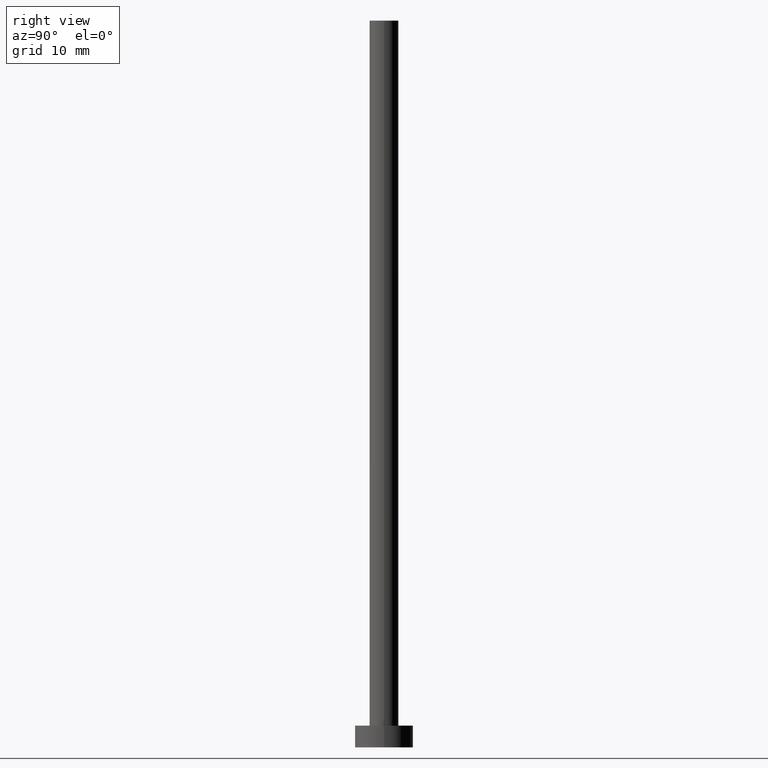
[diagram: clean part render]
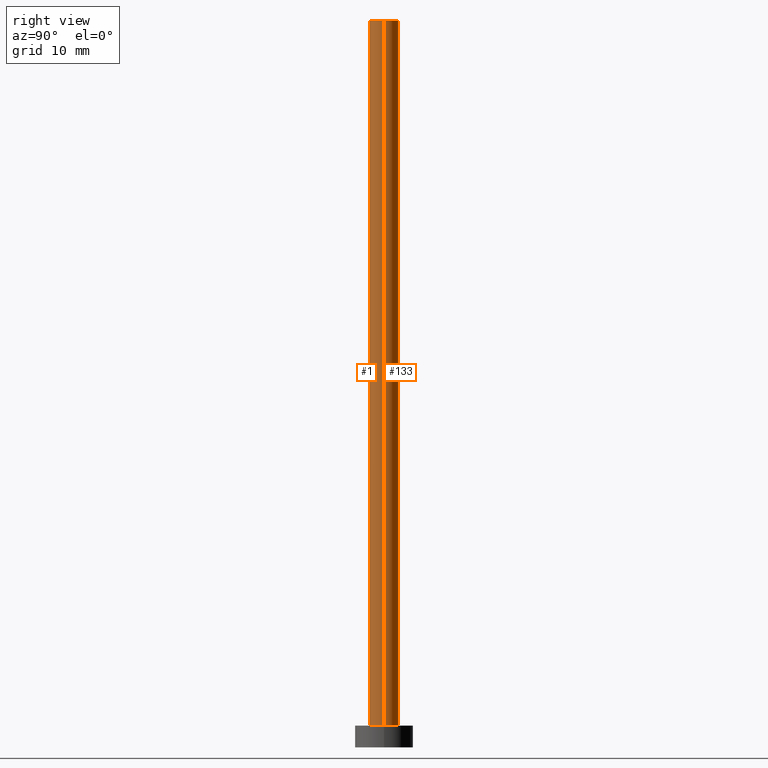
[diagram: same view with one multi-face feature highlighted, each face labeled with its STEP entity id]
A machine part, right view. The highlighted faces form ONE feature: a constant-radius fillet chain: 2 tangent blend faces with common blend radius 2 mm. The faces share edges in the B-rep.
Their STEP definitions:
[1] entity #1 (Cylinder):
#1 = ADVANCED_FACE ( 'NONE', ( #75 ), #153, .T. ) ;
#3 = CIRCLE ( 'NONE', #9, 2.000000000000000000 ) ;
#7 = VECTOR ( 'NONE', #138, 1000.000000000000000 ) ;
#9 = AXIS2_PLACEMENT_3D ( 'NONE', #111, #126, #186 ) ;
#10 = CARTESIAN_POINT ( 'NONE',  ( 2.000000000000000000, 2.449293598294705921E-16, 100.0000000000000000 ) ) ;
#13 = EDGE_CURVE ( 'NONE', #149, #152, #127, .T. ) ;
#26 = AXIS2_PLACEMENT_3D ( 'NONE', #155, #254, #215 ) ;
#27 = ORIENTED_EDGE ( 'NONE', *, *, #143, .F. ) ;
#30 = ORIENTED_EDGE ( 'NONE', *, *, #13, .T. ) ;
#61 = EDGE_CURVE ( 'NONE', #152, #173, #3, .T. ) ;
#75 = FACE_OUTER_BOUND ( 'NONE', #112, .T. ) ;
#86 = VECTOR ( 'NONE', #210, 1000.000000000000000 ) ;
#92 = DIRECTION ( 'NONE',  ( -1.000000000000000000, 0.000000000000000000, 0.000000000000000000 ) ) ;
#97 = EDGE_CURVE ( 'NONE', #206, #173, #227, .T. ) ;
#111 = CARTESIAN_POINT ( 'NONE',  ( 0.000000000000000000, 0.000000000000000000, 3.000000000000000000 ) ) ;
#112 = EDGE_LOOP ( 'NONE', ( #124, #27, #30, #168 ) ) ;
#120 = CARTESIAN_POINT ( 'NONE',  ( 2.000000000000000000, 2.449293598294705921E-16, 3.000000000000000000 ) ) ;
#124 = ORIENTED_EDGE ( 'NONE', *, *, #97, .F. ) ;
#126 = DIRECTION ( 'NONE',  ( 0.000000000000000000, 0.000000000000000000, 1.000000000000000000 ) ) ;
#127 = LINE ( 'NONE', #131, #86 ) ;
#129 = CARTESIAN_POINT ( 'NONE',  ( 0.000000000000000000, 0.000000000000000000, 100.0000000000000000 ) ) ;
#131 = CARTESIAN_POINT ( 'NONE',  ( -2.000000000000000000, 0.000000000000000000, 100.0000000000000000 ) ) ;
#138 = DIRECTION ( 'NONE',  ( -0.000000000000000000, -0.000000000000000000, -1.000000000000000000 ) ) ;
#143 = EDGE_CURVE ( 'NONE', #149, #206, #239, .T. ) ;
#149 = VERTEX_POINT ( 'NONE', #175 ) ;
#152 = VERTEX_POINT ( 'NONE', #251 ) ;
#153 = CYLINDRICAL_SURFACE ( 'NONE', #195, 2.000000000000000000 ) ;
#155 = CARTESIAN_POINT ( 'NONE',  ( 0.000000000000000000, 0.000000000000000000, 100.0000000000000000 ) ) ;
#168 = ORIENTED_EDGE ( 'NONE', *, *, #61, .T. ) ;
#173 = VERTEX_POINT ( 'NONE', #120 ) ;
#175 = CARTESIAN_POINT ( 'NONE',  ( -2.000000000000000000, 0.000000000000000000, 100.0000000000000000 ) ) ;
#186 = DIRECTION ( 'NONE',  ( 1.000000000000000000, 0.000000000000000000, 0.000000000000000000 ) ) ;
#191 = CARTESIAN_POINT ( 'NONE',  ( 2.000000000000000000, 2.449293598294705921E-16, 100.0000000000000000 ) ) ;
#195 = AXIS2_PLACEMENT_3D ( 'NONE', #129, #232, #92 ) ;
#206 = VERTEX_POINT ( 'NONE', #191 ) ;
#210 = DIRECTION ( 'NONE',  ( -0.000000000000000000, -0.000000000000000000, -1.000000000000000000 ) ) ;
#215 = DIRECTION ( 'NONE',  ( 1.000000000000000000, 0.000000000000000000, 0.000000000000000000 ) ) ;
#227 = LINE ( 'NONE', #10, #7 ) ;
#232 = DIRECTION ( 'NONE',  ( -0.000000000000000000, -0.000000000000000000, -1.000000000000000000 ) ) ;
#239 = CIRCLE ( 'NONE', #26, 2.000000000000000000 ) ;
#251 = CARTESIAN_POINT ( 'NONE',  ( -2.000000000000000000, 0.000000000000000000, 3.000000000000000000 ) ) ;
#254 = DIRECTION ( 'NONE',  ( 0.000000000000000000, 0.000000000000000000, 1.000000000000000000 ) ) ;
[2] entity #133 (Cylinder):
#2 = FACE_OUTER_BOUND ( 'NONE', #51, .T. ) ;
#6 = EDGE_CURVE ( 'NONE', #206, #149, #164, .T. ) ;
#7 = VECTOR ( 'NONE', #138, 1000.000000000000000 ) ;
#10 = CARTESIAN_POINT ( 'NONE',  ( 2.000000000000000000, 2.449293598294705921E-16, 100.0000000000000000 ) ) ;
#11 = EDGE_CURVE ( 'NONE', #173, #152, #39, .T. ) ;
#13 = EDGE_CURVE ( 'NONE', #149, #152, #127, .T. ) ;
#37 = DIRECTION ( 'NONE',  ( -0.000000000000000000, -0.000000000000000000, -1.000000000000000000 ) ) ;
#39 = CIRCLE ( 'NONE', #205, 2.000000000000000000 ) ;
#51 = EDGE_LOOP ( 'NONE', ( #71, #128, #203, #242 ) ) ;
#52 = CARTESIAN_POINT ( 'NONE',  ( 0.000000000000000000, 0.000000000000000000, 3.000000000000000000 ) ) ;
#69 = CARTESIAN_POINT ( 'NONE',  ( 0.000000000000000000, 0.000000000000000000, 100.0000000000000000 ) ) ;
#71 = ORIENTED_EDGE ( 'NONE', *, *, #6, .F. ) ;
#73 = AXIS2_PLACEMENT_3D ( 'NONE', #238, #37, #132 ) ;
#74 = DIRECTION ( 'NONE',  ( 0.000000000000000000, 0.000000000000000000, 1.000000000000000000 ) ) ;
#86 = VECTOR ( 'NONE', #210, 1000.000000000000000 ) ;
#97 = EDGE_CURVE ( 'NONE', #206, #173, #227, .T. ) ;
#120 = CARTESIAN_POINT ( 'NONE',  ( 2.000000000000000000, 2.449293598294705921E-16, 3.000000000000000000 ) ) ;
#127 = LINE ( 'NONE', #131, #86 ) ;
#128 = ORIENTED_EDGE ( 'NONE', *, *, #97, .T. ) ;
#131 = CARTESIAN_POINT ( 'NONE',  ( -2.000000000000000000, 0.000000000000000000, 100.0000000000000000 ) ) ;
#132 = DIRECTION ( 'NONE',  ( -1.000000000000000000, 0.000000000000000000, 0.000000000000000000 ) ) ;
#133 = ADVANCED_FACE ( 'NONE', ( #2 ), #176, .T. ) ;
#138 = DIRECTION ( 'NONE',  ( -0.000000000000000000, -0.000000000000000000, -1.000000000000000000 ) ) ;
#149 = VERTEX_POINT ( 'NONE', #175 ) ;
#152 = VERTEX_POINT ( 'NONE', #251 ) ;
#160 = AXIS2_PLACEMENT_3D ( 'NONE', #69, #74, #172 ) ;
#164 = CIRCLE ( 'NONE', #160, 2.000000000000000000 ) ;
#172 = DIRECTION ( 'NONE',  ( 1.000000000000000000, 0.000000000000000000, 0.000000000000000000 ) ) ;
#173 = VERTEX_POINT ( 'NONE', #120 ) ;
#175 = CARTESIAN_POINT ( 'NONE',  ( -2.000000000000000000, 0.000000000000000000, 100.0000000000000000 ) ) ;
#176 = CYLINDRICAL_SURFACE ( 'NONE', #73, 2.000000000000000000 ) ;
#191 = CARTESIAN_POINT ( 'NONE',  ( 2.000000000000000000, 2.449293598294705921E-16, 100.0000000000000000 ) ) ;
#203 = ORIENTED_EDGE ( 'NONE', *, *, #11, .T. ) ;
#205 = AXIS2_PLACEMENT_3D ( 'NONE', #52, #229, #244 ) ;
#206 = VERTEX_POINT ( 'NONE', #191 ) ;
#210 = DIRECTION ( 'NONE',  ( -0.000000000000000000, -0.000000000000000000, -1.000000000000000000 ) ) ;
#227 = LINE ( 'NONE', #10, #7 ) ;
#229 = DIRECTION ( 'NONE',  ( 0.000000000000000000, 0.000000000000000000, 1.000000000000000000 ) ) ;
#238 = CARTESIAN_POINT ( 'NONE',  ( 0.000000000000000000, 0.000000000000000000, 100.0000000000000000 ) ) ;
#242 = ORIENTED_EDGE ( 'NONE', *, *, #13, .F. ) ;
#244 = DIRECTION ( 'NONE',  ( 1.000000000000000000, 0.000000000000000000, 0.000000000000000000 ) ) ;
#251 = CARTESIAN_POINT ( 'NONE',  ( -2.000000000000000000, 0.000000000000000000, 3.000000000000000000 ) ) ;